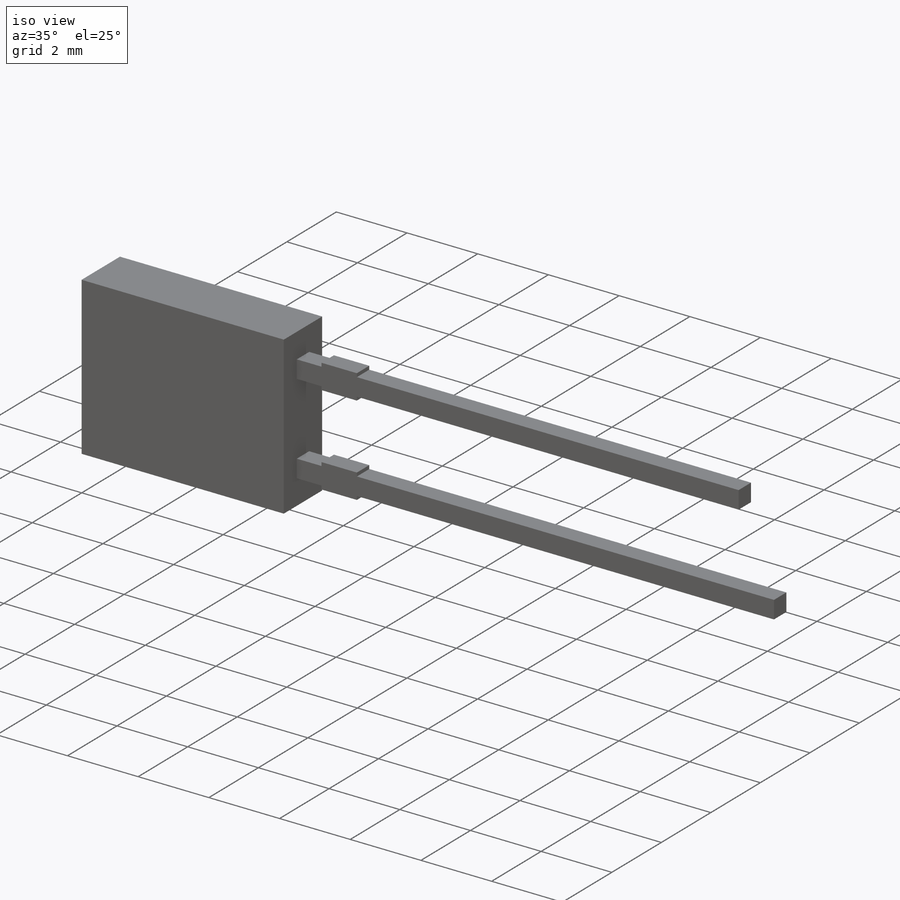
[diagram: iso view]
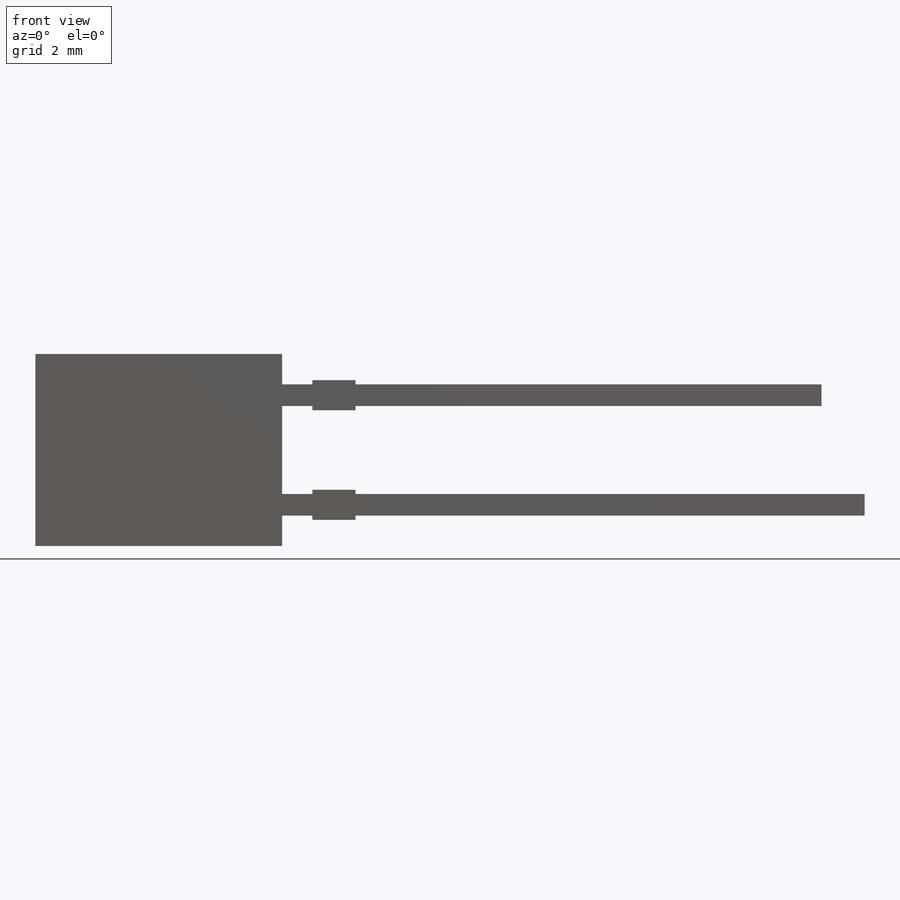
[diagram: front view]
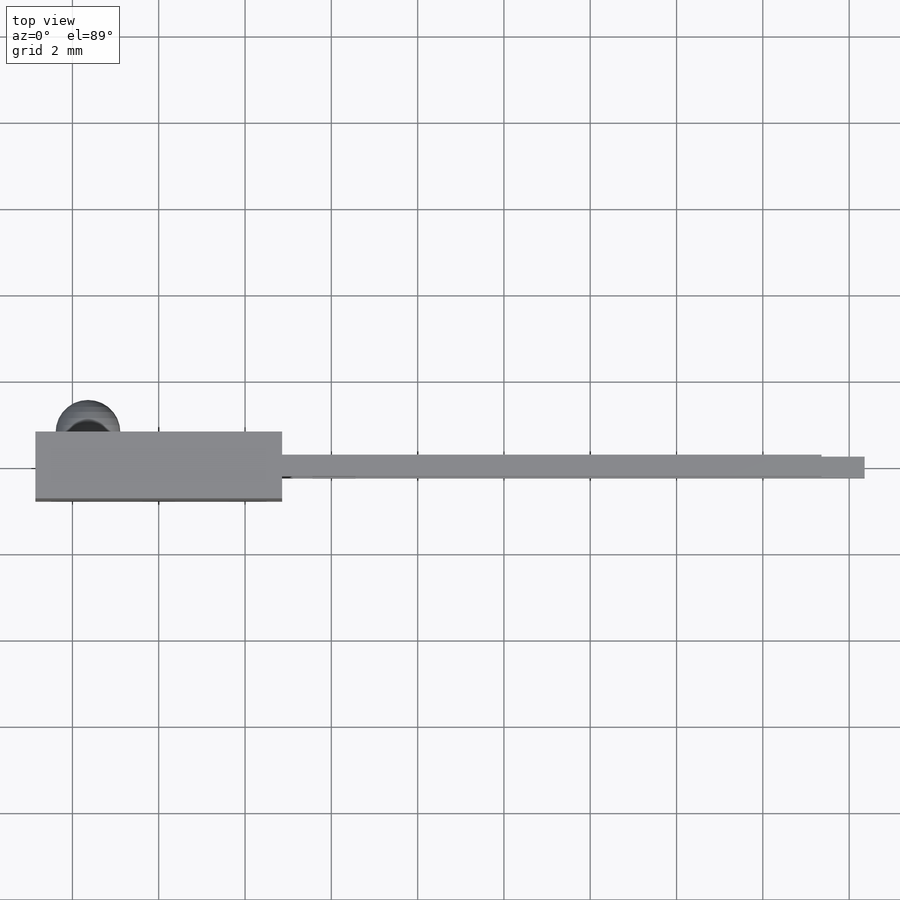
[diagram: top view]
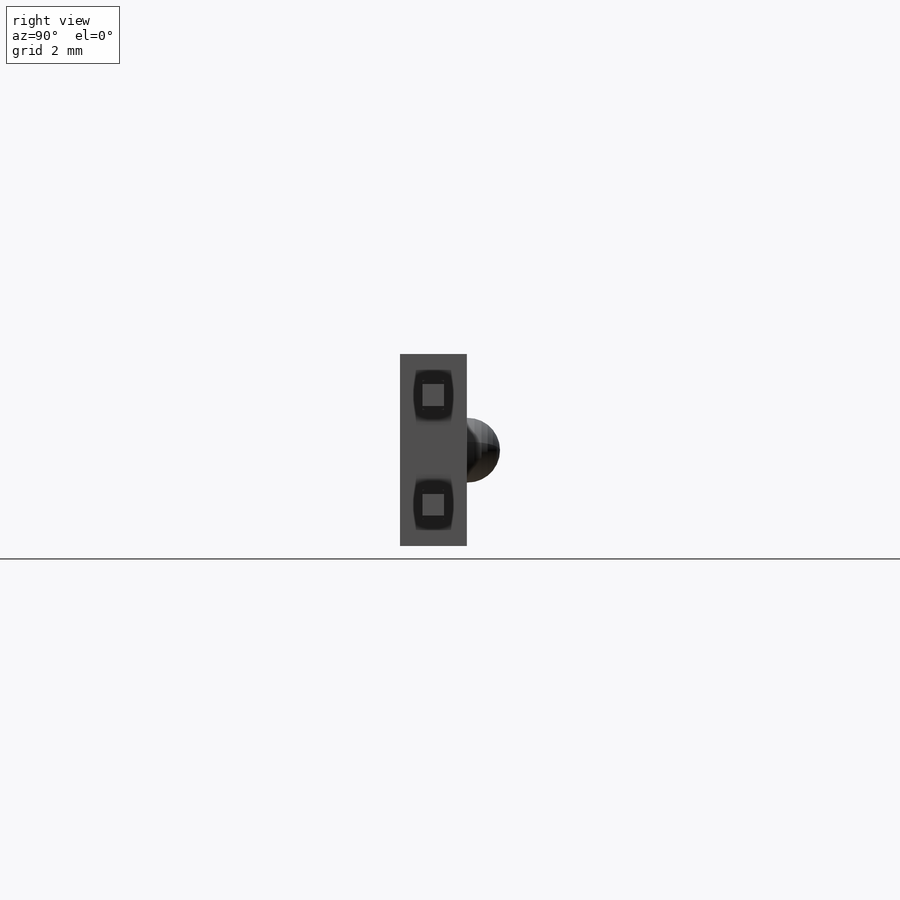
[diagram: right view]
SOLIDWORKS PART (.sldprt)
format: sldprt  version: not decoded by parser v0  size: 624,640 bytes
history: native  units: mm
features: sketch x4, extrude x3, material x1, dome x1, cut_extrude x1 (+11 scaffold rows collapsed)
feature tree (21):
  scaffold x11  (default folders/planes/origin — collapsed)
  material  "Material <not specified>"
  sketch  "Sketch1"  dims[D11=1.5mm D1=4.45mm D2=5.72mm D3=2.54mm D4=13.5mm D5=1.0mm D6=0.5mm D7=0.7mm D8=1.0mm D9=0.7mm D10=1.22mm D12=2.225mm]
  extrude  "Extrude1"  Depth=1.55mm
  extrude  "Extrude2"  [1 undecoded]
  sketch  "Sketch1<4>"  dims[D1=0.5mm]
  sketch  "Sketch2"  dims[D1=1.5mm D2=1.22mm D3=2.22mm]
  extrude  "Extrude3"  Depth=0.01mm
  dome  "Dome1"
  sketch  "Sketch3"  dims[D1=~2.724511mm]
  cut_extrude  "Cut-Extrude1"  Depth=0.01mm
decode coverage: 7 of 9 modeling features carry decoded parameters
note: ~ marks probable driven/reference dimensions
note: 1 parameter value undecoded
note: suppression state not decoded; provenance and decode notes live in map.json
